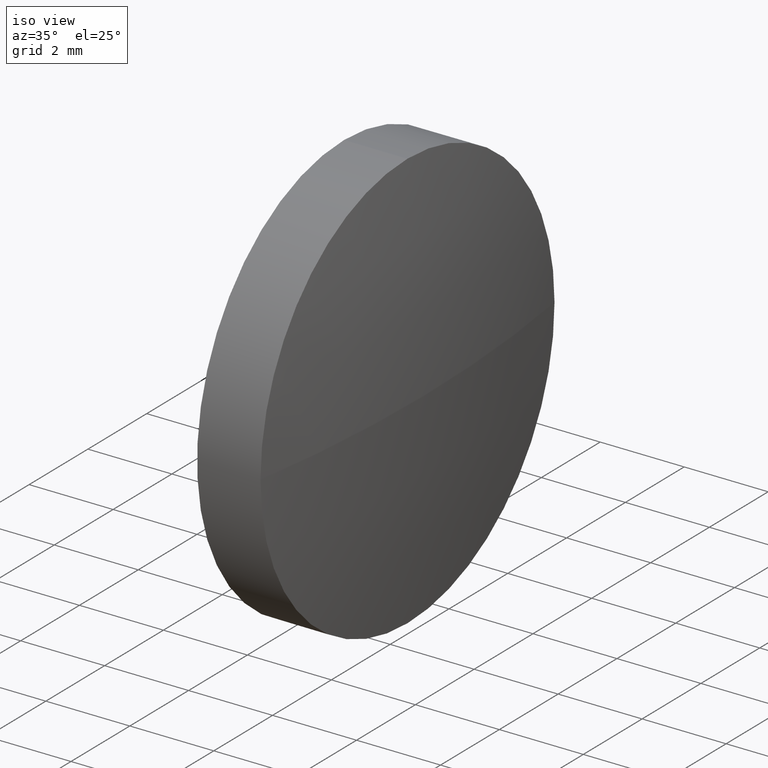
[diagram: clean part render]
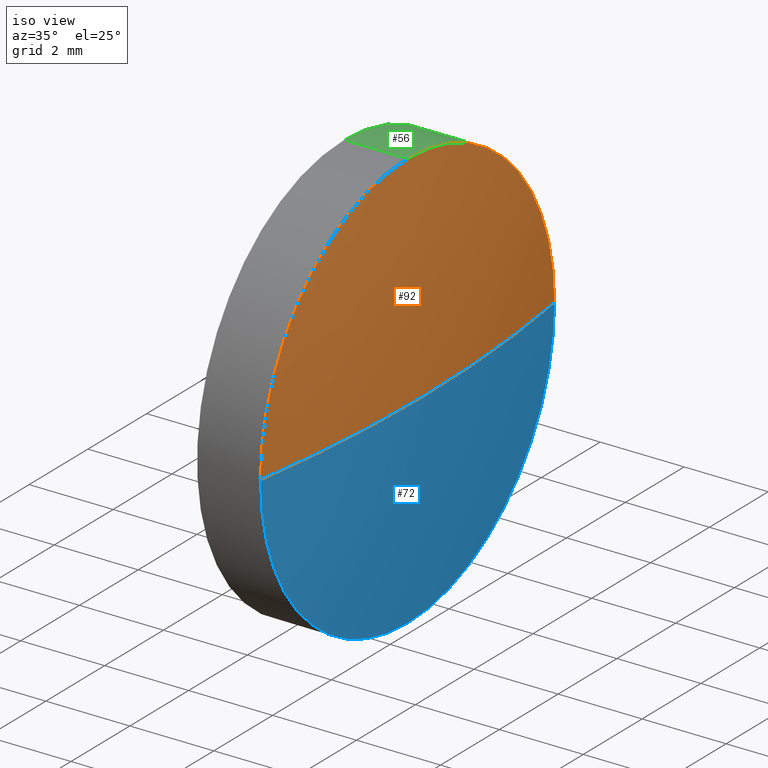
[diagram: same view with three faces highlighted in distinct colors, each labeled with its STEP entity id]
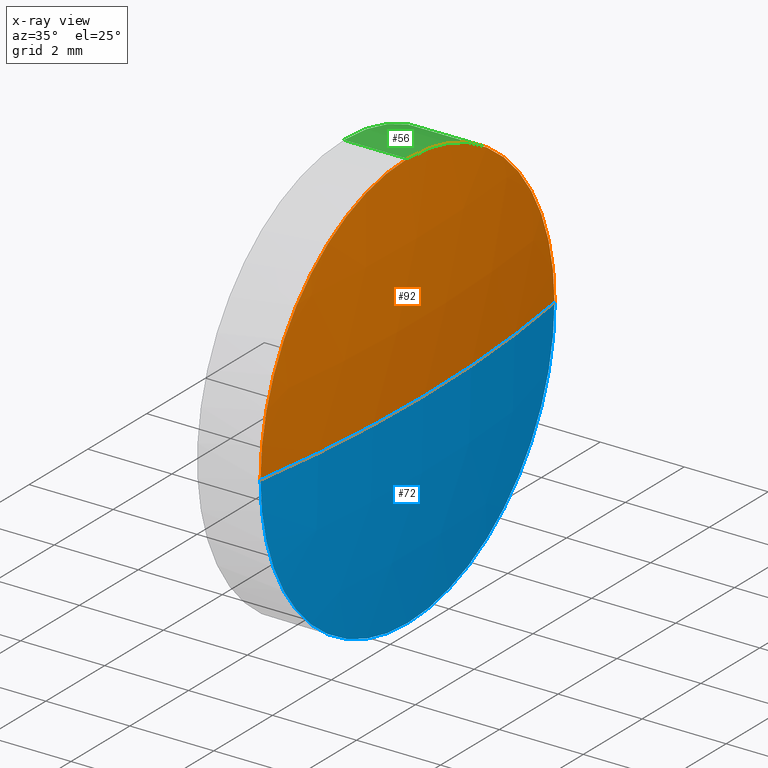
[diagram: x-ray of the same camera — body ghosted, the three highlighted faces saturated]
A machine part, iso view with three faces highlighted in distinct colors.
The next image is the same camera in x-ray (body ghosted, the three faces saturated) — at least one of them is partly hidden behind the body in this view.
Their STEP definitions:

[orange] entity #92 — the highlighted spherical surface has radius 32.2463 mm.
#1 = EDGE_LOOP ( 'NONE', ( #82, #69, #148, #142 ) ) ;
#21 = CARTESIAN_POINT ( 'NONE',  ( 380.1261026071219400, 38.61574357864402900, 0.0000000000000000000 ) ) ;
#22 = CARTESIAN_POINT ( 'NONE',  ( 411.9823846584040400, 33.61574357864400000, 0.0000000000000000000 ) ) ;
#29 = EDGE_CURVE ( 'NONE', #78, #88, #115, .T. ) ;
#30 = DIRECTION ( 'NONE',  ( -1.000000000000000000, -0.0000000000000000000, -0.0000000000000000000 ) ) ;
#31 = DIRECTION ( 'NONE',  ( 0.0000000000000000000, -1.224646799147353200E-016, 1.000000000000000000 ) ) ;
#34 = VERTEX_POINT ( 'NONE', #22 ) ;
#37 = CARTESIAN_POINT ( 'NONE',  ( 380.1261026071219400, 38.61574357864402900, 0.0000000000000000000 ) ) ;
#39 = AXIS2_PLACEMENT_3D ( 'NONE', #116, #150, #66 ) ;
#40 = FACE_OUTER_BOUND ( 'NONE', #1, .T. ) ;
#47 = DIRECTION ( 'NONE',  ( 0.0000000000000000000, -1.000000000000000000, 0.0000000000000000000 ) ) ;
#58 = DIRECTION ( 'NONE',  ( 0.0000000000000000000, 0.0000000000000000000, -1.000000000000000000 ) ) ;
#59 = EDGE_CURVE ( 'NONE', #34, #78, #123, .T. ) ;
#66 = DIRECTION ( 'NONE',  ( 0.0000000000000000000, 0.0000000000000000000, 1.000000000000000000 ) ) ;
#68 = CARTESIAN_POINT ( 'NONE',  ( 411.9823846584040400, 43.61574357864400000, 6.123233995736730800E-016 ) ) ;
#69 = ORIENTED_EDGE ( 'NONE', *, *, #73, .T. ) ;
#73 = EDGE_CURVE ( 'NONE', #165, #88, #161, .T. ) ;
#78 = VERTEX_POINT ( 'NONE', #153 ) ;
#82 = ORIENTED_EDGE ( 'NONE', *, *, #133, .F. ) ;
#88 = VERTEX_POINT ( 'NONE', #68 ) ;
#89 = AXIS2_PLACEMENT_3D ( 'NONE', #21, #31, #117 ) ;
#92 = ADVANCED_FACE ( 'NONE', ( #40 ), #127, .T. ) ;
#101 = DIRECTION ( 'NONE',  ( 0.0000000000000000000, 0.0000000000000000000, 1.000000000000000000 ) ) ;
#109 = AXIS2_PLACEMENT_3D ( 'NONE', #170, #30, #180 ) ;
#115 = CIRCLE ( 'NONE', #109, 4.999999999999997300 ) ;
#116 = CARTESIAN_POINT ( 'NONE',  ( 411.9823846584040400, 38.61574357864396500, 0.0000000000000000000 ) ) ;
#117 = DIRECTION ( 'NONE',  ( 0.0000000000000000000, -1.000000000000000000, -1.224646799147353200E-016 ) ) ;
#123 = CIRCLE ( 'NONE', #39, 4.999999999999997300 ) ;
#126 = AXIS2_PLACEMENT_3D ( 'NONE', #37, #58, #144 ) ;
#127 = SPHERICAL_SURFACE ( 'NONE', #136, 32.24628205128210800 ) ;
#133 = EDGE_CURVE ( 'NONE', #165, #34, #156, .T. ) ;
#136 = AXIS2_PLACEMENT_3D ( 'NONE', #152, #101, #47 ) ;
#142 = ORIENTED_EDGE ( 'NONE', *, *, #59, .F. ) ;
#144 = DIRECTION ( 'NONE',  ( -1.000000000000000000, 0.0000000000000000000, 0.0000000000000000000 ) ) ;
#148 = ORIENTED_EDGE ( 'NONE', *, *, #29, .F. ) ;
#150 = DIRECTION ( 'NONE',  ( -1.000000000000000000, -0.0000000000000000000, -0.0000000000000000000 ) ) ;
#152 = CARTESIAN_POINT ( 'NONE',  ( 380.1261026071219400, 38.61574357864402900, 0.0000000000000000000 ) ) ;
#153 = CARTESIAN_POINT ( 'NONE',  ( 411.9823846584040400, 38.61574357864396500, 4.999999999999997300 ) ) ;
#156 = CIRCLE ( 'NONE', #126, 32.24628205128210800 ) ;
#161 = CIRCLE ( 'NONE', #89, 32.24628205128210800 ) ;
#165 = VERTEX_POINT ( 'NONE', #166 ) ;
#166 = CARTESIAN_POINT ( 'NONE',  ( 412.3723846584040300, 38.61574357864402900, 0.0000000000000000000 ) ) ;
#170 = CARTESIAN_POINT ( 'NONE',  ( 411.9823846584040400, 38.61574357864396500, 0.0000000000000000000 ) ) ;
#180 = DIRECTION ( 'NONE',  ( 0.0000000000000000000, 0.0000000000000000000, 1.000000000000000000 ) ) ;

[blue] entity #72 — the highlighted spherical surface has radius 32.2463 mm.
#6 = CIRCLE ( 'NONE', #105, 4.999999999999997300 ) ;
#13 = ORIENTED_EDGE ( 'NONE', *, *, #120, .F. ) ;
#18 = EDGE_CURVE ( 'NONE', #88, #100, #6, .T. ) ;
#20 = DIRECTION ( 'NONE',  ( 0.0000000000000000000, 0.0000000000000000000, 1.000000000000000000 ) ) ;
#21 = CARTESIAN_POINT ( 'NONE',  ( 380.1261026071219400, 38.61574357864402900, 0.0000000000000000000 ) ) ;
#22 = CARTESIAN_POINT ( 'NONE',  ( 411.9823846584040400, 33.61574357864400000, 0.0000000000000000000 ) ) ;
#27 = ORIENTED_EDGE ( 'NONE', *, *, #133, .T. ) ;
#31 = DIRECTION ( 'NONE',  ( 0.0000000000000000000, -1.224646799147353200E-016, 1.000000000000000000 ) ) ;
#34 = VERTEX_POINT ( 'NONE', #22 ) ;
#35 = ORIENTED_EDGE ( 'NONE', *, *, #73, .F. ) ;
#37 = CARTESIAN_POINT ( 'NONE',  ( 380.1261026071219400, 38.61574357864402900, 0.0000000000000000000 ) ) ;
#44 = DIRECTION ( 'NONE',  ( -1.000000000000000000, -0.0000000000000000000, -0.0000000000000000000 ) ) ;
#45 = SPHERICAL_SURFACE ( 'NONE', #124, 32.24628205128210800 ) ;
#53 = CARTESIAN_POINT ( 'NONE',  ( 380.1261026071219400, 38.61574357864402900, 0.0000000000000000000 ) ) ;
#58 = DIRECTION ( 'NONE',  ( 0.0000000000000000000, 0.0000000000000000000, -1.000000000000000000 ) ) ;
#65 = FACE_OUTER_BOUND ( 'NONE', #155, .T. ) ;
#68 = CARTESIAN_POINT ( 'NONE',  ( 411.9823846584040400, 43.61574357864400000, 6.123233995736730800E-016 ) ) ;
#72 = ADVANCED_FACE ( 'NONE', ( #65 ), #45, .T. ) ;
#73 = EDGE_CURVE ( 'NONE', #165, #88, #161, .T. ) ;
#74 = CIRCLE ( 'NONE', #111, 4.999999999999997300 ) ;
#81 = DIRECTION ( 'NONE',  ( 0.0000000000000000000, 0.0000000000000000000, 1.000000000000000000 ) ) ;
#83 = CARTESIAN_POINT ( 'NONE',  ( 411.9823846584040400, 38.61574357864396500, 0.0000000000000000000 ) ) ;
#88 = VERTEX_POINT ( 'NONE', #68 ) ;
#89 = AXIS2_PLACEMENT_3D ( 'NONE', #21, #31, #117 ) ;
#93 = CARTESIAN_POINT ( 'NONE',  ( 411.9823846584040400, 38.61574357864396500, -4.999999999999997300 ) ) ;
#100 = VERTEX_POINT ( 'NONE', #93 ) ;
#105 = AXIS2_PLACEMENT_3D ( 'NONE', #83, #112, #81 ) ;
#111 = AXIS2_PLACEMENT_3D ( 'NONE', #137, #44, #177 ) ;
#112 = DIRECTION ( 'NONE',  ( -1.000000000000000000, -0.0000000000000000000, -0.0000000000000000000 ) ) ;
#117 = DIRECTION ( 'NONE',  ( 0.0000000000000000000, -1.000000000000000000, -1.224646799147353200E-016 ) ) ;
#120 = EDGE_CURVE ( 'NONE', #100, #34, #74, .T. ) ;
#121 = DIRECTION ( 'NONE',  ( 0.0000000000000000000, -1.000000000000000000, 0.0000000000000000000 ) ) ;
#124 = AXIS2_PLACEMENT_3D ( 'NONE', #53, #20, #121 ) ;
#126 = AXIS2_PLACEMENT_3D ( 'NONE', #37, #58, #144 ) ;
#130 = ORIENTED_EDGE ( 'NONE', *, *, #18, .F. ) ;
#133 = EDGE_CURVE ( 'NONE', #165, #34, #156, .T. ) ;
#137 = CARTESIAN_POINT ( 'NONE',  ( 411.9823846584040400, 38.61574357864396500, 0.0000000000000000000 ) ) ;
#144 = DIRECTION ( 'NONE',  ( -1.000000000000000000, 0.0000000000000000000, 0.0000000000000000000 ) ) ;
#155 = EDGE_LOOP ( 'NONE', ( #35, #27, #13, #130 ) ) ;
#156 = CIRCLE ( 'NONE', #126, 32.24628205128210800 ) ;
#161 = CIRCLE ( 'NONE', #89, 32.24628205128210800 ) ;
#165 = VERTEX_POINT ( 'NONE', #166 ) ;
#166 = CARTESIAN_POINT ( 'NONE',  ( 412.3723846584040300, 38.61574357864402900, 0.0000000000000000000 ) ) ;
#177 = DIRECTION ( 'NONE',  ( 0.0000000000000000000, 0.0000000000000000000, 1.000000000000000000 ) ) ;

[green] entity #56 — the highlighted cylindrical surface (partial cylindrical patch) has radius 5 mm, axis along (-1, -0, -0).
#3 = ORIENTED_EDGE ( 'NONE', *, *, #158, .T. ) ;
#6 = CIRCLE ( 'NONE', #105, 4.999999999999997300 ) ;
#9 = VERTEX_POINT ( 'NONE', #60 ) ;
#11 = VERTEX_POINT ( 'NONE', #178 ) ;
#17 = CIRCLE ( 'NONE', #95, 4.999999999999997300 ) ;
#18 = EDGE_CURVE ( 'NONE', #88, #100, #6, .T. ) ;
#25 = CARTESIAN_POINT ( 'NONE',  ( 409.6747124043386600, 38.61574357864396500, -4.999999999999997300 ) ) ;
#28 = DIRECTION ( 'NONE',  ( -1.000000000000000000, -0.0000000000000000000, -0.0000000000000000000 ) ) ;
#29 = EDGE_CURVE ( 'NONE', #78, #88, #115, .T. ) ;
#30 = DIRECTION ( 'NONE',  ( -1.000000000000000000, -0.0000000000000000000, -0.0000000000000000000 ) ) ;
#33 = LINE ( 'NONE', #25, #154 ) ;
#36 = DIRECTION ( 'NONE',  ( -1.000000000000000000, -0.0000000000000000000, -0.0000000000000000000 ) ) ;
#38 = CYLINDRICAL_SURFACE ( 'NONE', #169, 4.999999999999997300 ) ;
#43 = DIRECTION ( 'NONE',  ( -1.000000000000000000, -0.0000000000000000000, -0.0000000000000000000 ) ) ;
#50 = ORIENTED_EDGE ( 'NONE', *, *, #79, .F. ) ;
#56 = ADVANCED_FACE ( 'NONE', ( #167 ), #38, .T. ) ;
#60 = CARTESIAN_POINT ( 'NONE',  ( 410.4723846584040500, 38.61574357864396500, 4.999999999999997300 ) ) ;
#61 = ORIENTED_EDGE ( 'NONE', *, *, #29, .T. ) ;
#64 = EDGE_CURVE ( 'NONE', #78, #9, #157, .T. ) ;
#68 = CARTESIAN_POINT ( 'NONE',  ( 411.9823846584040400, 43.61574357864400000, 6.123233995736730800E-016 ) ) ;
#70 = EDGE_LOOP ( 'NONE', ( #128, #3, #50, #106, #61 ) ) ;
#78 = VERTEX_POINT ( 'NONE', #153 ) ;
#79 = EDGE_CURVE ( 'NONE', #9, #11, #17, .T. ) ;
#81 = DIRECTION ( 'NONE',  ( 0.0000000000000000000, 0.0000000000000000000, 1.000000000000000000 ) ) ;
#83 = CARTESIAN_POINT ( 'NONE',  ( 411.9823846584040400, 38.61574357864396500, 0.0000000000000000000 ) ) ;
#88 = VERTEX_POINT ( 'NONE', #68 ) ;
#93 = CARTESIAN_POINT ( 'NONE',  ( 411.9823846584040400, 38.61574357864396500, -4.999999999999997300 ) ) ;
#95 = AXIS2_PLACEMENT_3D ( 'NONE', #151, #172, #181 ) ;
#100 = VERTEX_POINT ( 'NONE', #93 ) ;
#105 = AXIS2_PLACEMENT_3D ( 'NONE', #83, #112, #81 ) ;
#106 = ORIENTED_EDGE ( 'NONE', *, *, #64, .F. ) ;
#109 = AXIS2_PLACEMENT_3D ( 'NONE', #170, #30, #180 ) ;
#110 = VECTOR ( 'NONE', #43, 1000.000000000000000 ) ;
#112 = DIRECTION ( 'NONE',  ( -1.000000000000000000, -0.0000000000000000000, -0.0000000000000000000 ) ) ;
#115 = CIRCLE ( 'NONE', #109, 4.999999999999997300 ) ;
#118 = CARTESIAN_POINT ( 'NONE',  ( 409.6747124043386600, 38.61574357864396500, 0.0000000000000000000 ) ) ;
#128 = ORIENTED_EDGE ( 'NONE', *, *, #18, .T. ) ;
#134 = CARTESIAN_POINT ( 'NONE',  ( 409.6747124043386600, 38.61574357864396500, 4.999999999999997300 ) ) ;
#135 = DIRECTION ( 'NONE',  ( 0.0000000000000000000, 0.0000000000000000000, 1.000000000000000000 ) ) ;
#151 = CARTESIAN_POINT ( 'NONE',  ( 410.4723846584040500, 38.61574357864396500, 0.0000000000000000000 ) ) ;
#153 = CARTESIAN_POINT ( 'NONE',  ( 411.9823846584040400, 38.61574357864396500, 4.999999999999997300 ) ) ;
#154 = VECTOR ( 'NONE', #36, 1000.000000000000000 ) ;
#157 = LINE ( 'NONE', #134, #110 ) ;
#158 = EDGE_CURVE ( 'NONE', #100, #11, #33, .T. ) ;
#167 = FACE_OUTER_BOUND ( 'NONE', #70, .T. ) ;
#169 = AXIS2_PLACEMENT_3D ( 'NONE', #118, #28, #135 ) ;
#170 = CARTESIAN_POINT ( 'NONE',  ( 411.9823846584040400, 38.61574357864396500, 0.0000000000000000000 ) ) ;
#172 = DIRECTION ( 'NONE',  ( -1.000000000000000000, -0.0000000000000000000, -0.0000000000000000000 ) ) ;
#178 = CARTESIAN_POINT ( 'NONE',  ( 410.4723846584040500, 38.61574357864396500, -4.999999999999997300 ) ) ;
#180 = DIRECTION ( 'NONE',  ( 0.0000000000000000000, 0.0000000000000000000, 1.000000000000000000 ) ) ;
#181 = DIRECTION ( 'NONE',  ( 0.0000000000000000000, 0.0000000000000000000, 1.000000000000000000 ) ) ;